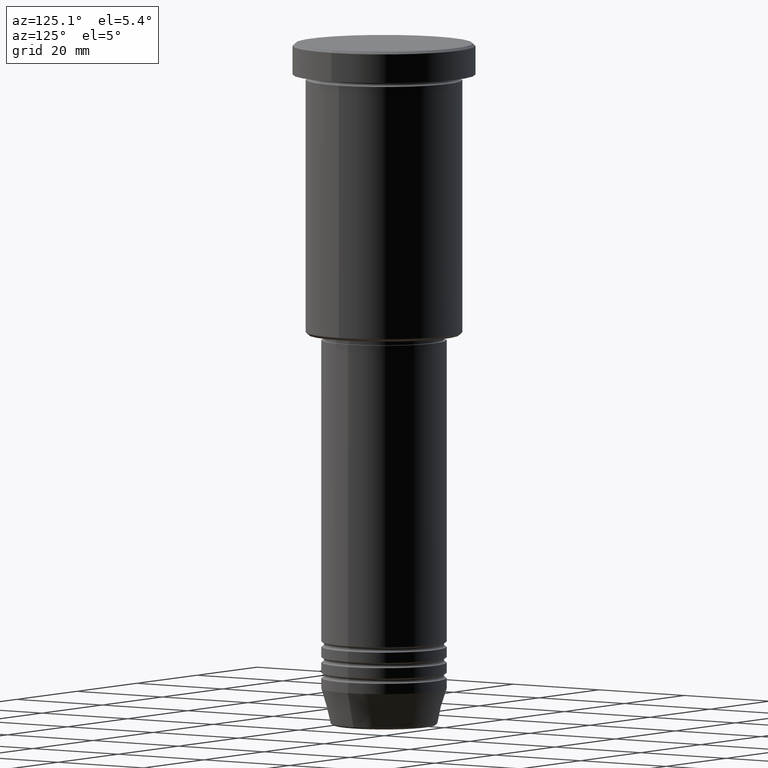
[diagram: clean part render]
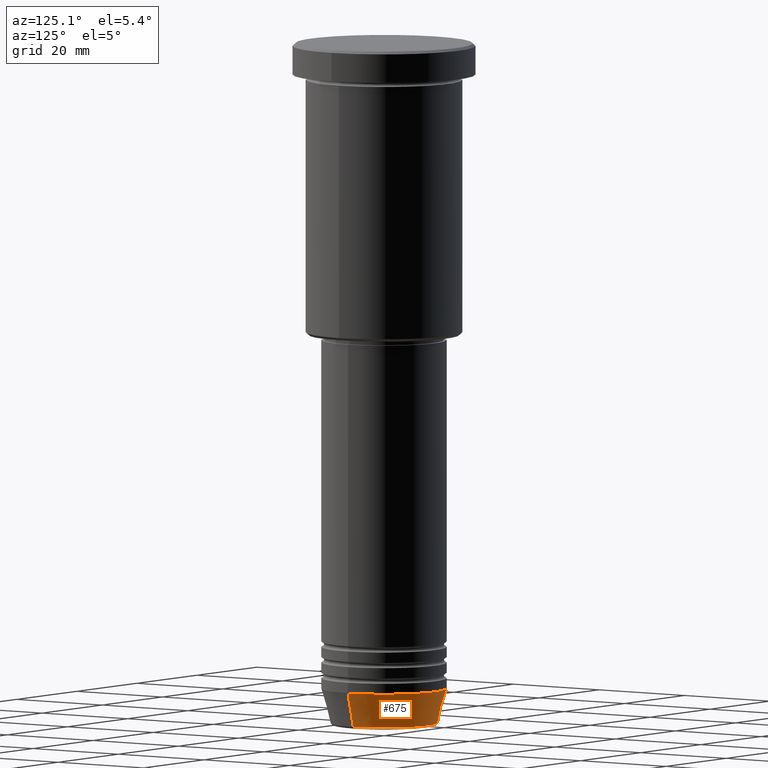
[diagram: same view with one face highlighted and labeled with its STEP entity id]
A machine part, auxiliary view. The second image highlights one B-rep face of the part: STEP entity #675.
In plain terms, the highlighted conical surface has half-angle 15 deg.
Its self-contained STEP definition (entity closure, byte-faithful):
#35 = CARTESIAN_POINT ( 'NONE',  ( 12.00000000000000000, 0.000000000000000000, -124.0000000000000000 ) ) ;
#90 = DIRECTION ( 'NONE',  ( -0.2588190451025213501, 3.169619151431772337E-17, 0.9659258262890680902 ) ) ;
#139 = FACE_OUTER_BOUND ( 'NONE', #513, .T. ) ;
#160 = DIRECTION ( 'NONE',  ( -0.000000000000000000, -0.000000000000000000, 1.000000000000000000 ) ) ;
#195 = ORIENTED_EDGE ( 'NONE', *, *, #422, .F. ) ;
#204 = EDGE_CURVE ( 'NONE', #458, #894, #365, .T. ) ;
#317 = EDGE_CURVE ( 'NONE', #458, #576, #461, .T. ) ;
#365 = LINE ( 'NONE', #35, #597 ) ;
#366 = VECTOR ( 'NONE', #90, 1000.000000000000000 ) ;
#373 = CARTESIAN_POINT ( 'NONE',  ( -12.00000000000000000, 1.469576158976823947E-15, -124.0000000000000000 ) ) ;
#422 = EDGE_CURVE ( 'NONE', #894, #449, #875, .T. ) ;
#428 = DIRECTION ( 'NONE',  ( -0.000000000000000000, -0.000000000000000000, 1.000000000000000000 ) ) ;
#449 = VERTEX_POINT ( 'NONE', #373 ) ;
#455 = EDGE_CURVE ( 'NONE', #576, #449, #720, .T. ) ;
#458 = VERTEX_POINT ( 'NONE', #1076 ) ;
#461 = CIRCLE ( 'NONE', #692, 10.22365507213718949 ) ;
#462 = CONICAL_SURFACE ( 'NONE', #917, 12.00000000000000000, 0.2617993877991500740 ) ;
#469 = CARTESIAN_POINT ( 'NONE',  ( 12.00000000000000000, 0.000000000000000000, -124.0000000000000000 ) ) ;
#478 = ORIENTED_EDGE ( 'NONE', *, *, #204, .F. ) ;
#494 = CARTESIAN_POINT ( 'NONE',  ( 0.000000000000000000, 0.000000000000000000, -130.6294095225512422 ) ) ;
#513 = EDGE_LOOP ( 'NONE', ( #769, #608, #195, #478 ) ) ;
#571 = DIRECTION ( 'NONE',  ( -0.000000000000000000, -0.000000000000000000, 1.000000000000000000 ) ) ;
#576 = VERTEX_POINT ( 'NONE', #753 ) ;
#597 = VECTOR ( 'NONE', #733, 1000.000000000000000 ) ;
#608 = ORIENTED_EDGE ( 'NONE', *, *, #455, .T. ) ;
#641 = DIRECTION ( 'NONE',  ( 1.000000000000000000, 0.000000000000000000, 0.000000000000000000 ) ) ;
#675 = ADVANCED_FACE ( 'NONE', ( #139 ), #462, .T. ) ;
#692 = AXIS2_PLACEMENT_3D ( 'NONE', #494, #571, #856 ) ;
#720 = LINE ( 'NONE', #736, #366 ) ;
#733 = DIRECTION ( 'NONE',  ( 0.2588190451025213501, 0.000000000000000000, 0.9659258262890680902 ) ) ;
#736 = CARTESIAN_POINT ( 'NONE',  ( -12.00000000000000000, 1.469576158976823947E-15, -124.0000000000000000 ) ) ;
#753 = CARTESIAN_POINT ( 'NONE',  ( -10.22365507213718949, 1.360806402472382744E-15, -130.6294095225512422 ) ) ;
#769 = ORIENTED_EDGE ( 'NONE', *, *, #317, .T. ) ;
#771 = CARTESIAN_POINT ( 'NONE',  ( 0.000000000000000000, 0.000000000000000000, -124.0000000000000000 ) ) ;
#856 = DIRECTION ( 'NONE',  ( 1.000000000000000000, 0.000000000000000000, 0.000000000000000000 ) ) ;
#873 = DIRECTION ( 'NONE',  ( 1.000000000000000000, 0.000000000000000000, 0.000000000000000000 ) ) ;
#875 = CIRCLE ( 'NONE', #1010, 12.00000000000000000 ) ;
#894 = VERTEX_POINT ( 'NONE', #469 ) ;
#917 = AXIS2_PLACEMENT_3D ( 'NONE', #771, #428, #873 ) ;
#921 = CARTESIAN_POINT ( 'NONE',  ( 0.000000000000000000, 0.000000000000000000, -124.0000000000000000 ) ) ;
#1010 = AXIS2_PLACEMENT_3D ( 'NONE', #921, #160, #641 ) ;
#1076 = CARTESIAN_POINT ( 'NONE',  ( 10.22365507213718949, 0.000000000000000000, -130.6294095225512422 ) ) ;